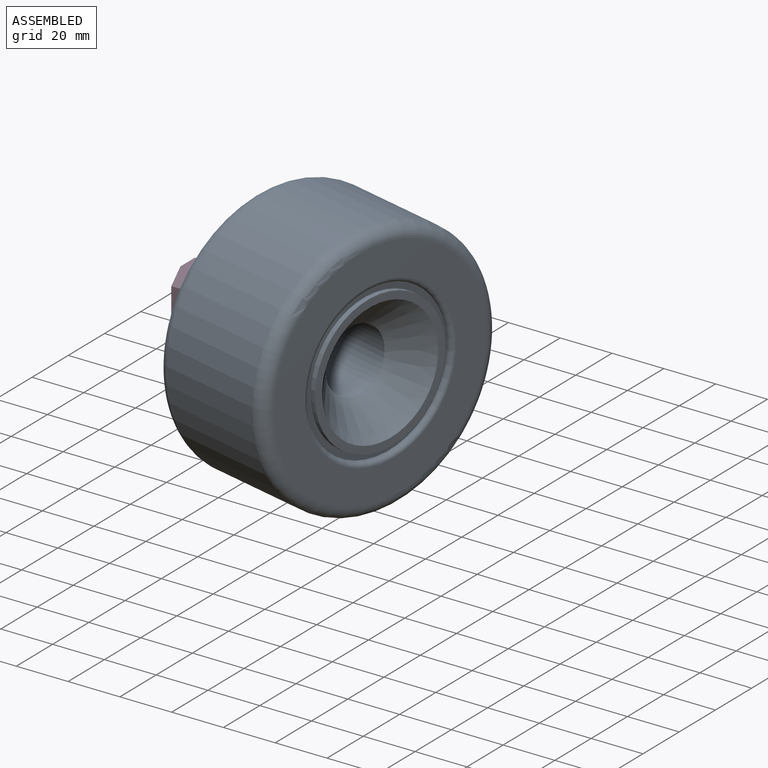
[diagram: assembled view]
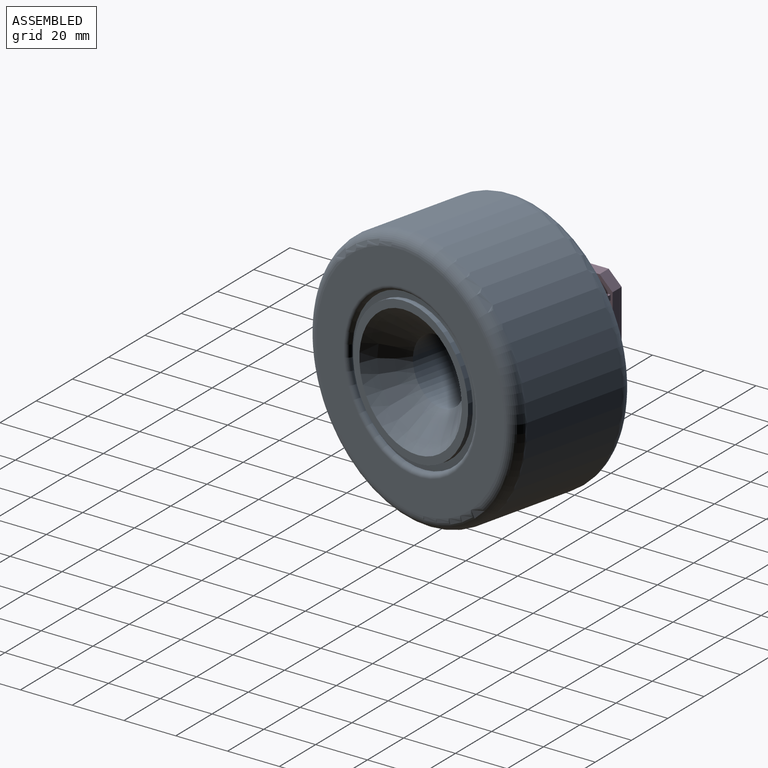
[diagram: assembled view, second angle]
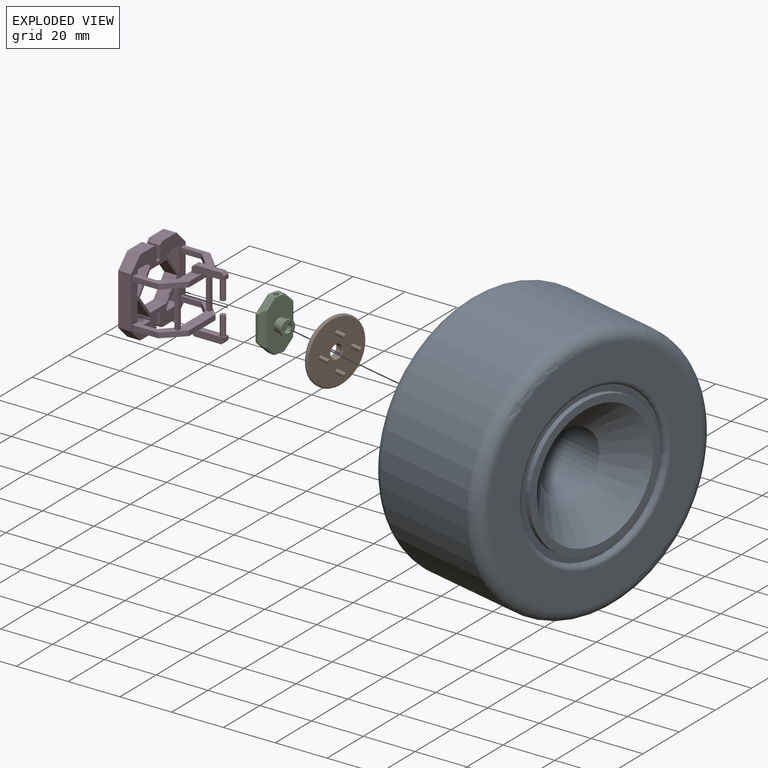
[diagram: exploded view]
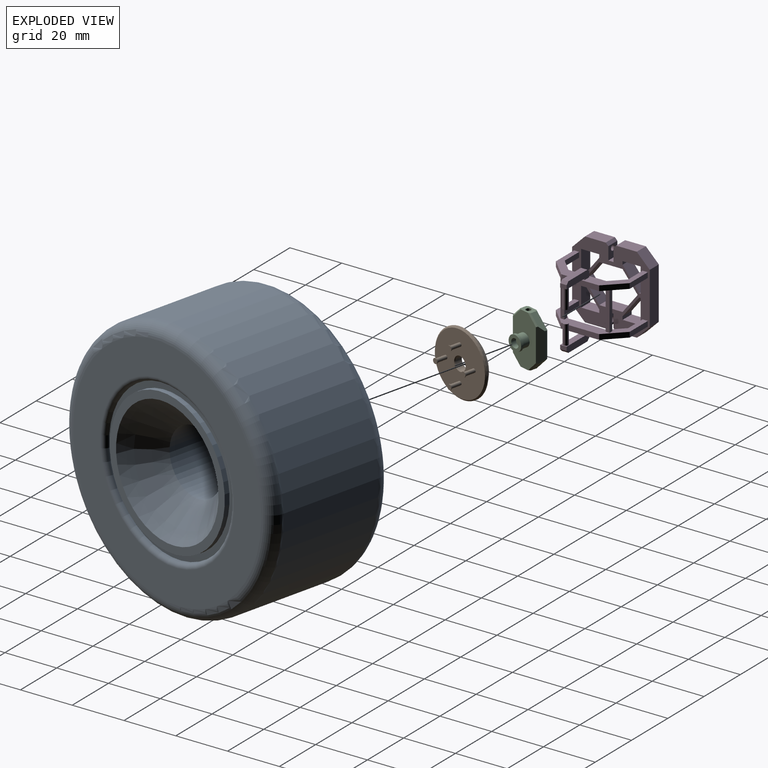
[diagram: exploded view, second angle]
ASSEMBLY  parts=4 mates=3
PART A: 19 faces, bbox 108.2x108.2x50 mm
  f0: cylinder r=50mm len=100mm, axis (0,0,-1), area 12566.4mm2, adj f3,f4
  f1: plane 90x90mm, normal (0,0,1), area 3144.7mm2, adj f4,f8
  f2: plane 90x90mm, normal (0,0,-1), area 5870.9mm2, adj f3,f11
  f3: torus R=45mm, axis (0,0,1), area 2377.7mm2, adj f0,f2
  f4: torus R=45mm, axis (0,0,1), area 2377.7mm2, adj f0,f1
  f5: cylinder r=27.5mm len=55mm, axis (0,0,1), area 345.6mm2, adj f6,f7
  f6: plane 60x60mm, normal (0,0,1), area 451.6mm2, adj f5,f8
  f7: plane 55x55mm, normal (0,0,1), area 490.1mm2, adj f5,f17
  f8: torus R=32mm, axis (0,0,1), area 606.5mm2, adj f1,f6
  f9: cylinder r=12.5mm len=29mm, axis (0,0,1), area 2277.7mm2, adj f10,f17
  f10: plane 25x25mm, normal (0,0,1), area 455.5mm2, adj f9,f13,f14,f15,f16,f18
  f11: cylinder r=12.5mm len=25mm, axis (0,0,-1), area 392.7mm2, adj f2,f12
  f12: plane 25x25mm, normal (0,0,-1), area 455.5mm2, adj f11,f13,f14,f15,f16,f18
  f13: cylinder r=0.75mm len=4mm, axis (0,0,1), area 18.8mm2, adj f10,f12
  f14: cylinder r=0.75mm len=4mm, axis (0,0,1), area 18.8mm2, adj f10,f12
  f15: cylinder r=0.75mm len=4mm, axis (0,0,1), area 18.8mm2, adj f10,f12
  f16: cylinder r=0.75mm len=4mm, axis (0,0,1), area 18.8mm2, adj f10,f12
  f17: cone r=12.5mm half-angle=45deg, axis (0,0,1), area 1972.6mm2, adj f7,f9
  f18: cylinder r=3mm len=6mm, axis (0,0,-1), area 75.4mm2, adj f10,f12
PART B: 27 faces, bbox 25x25x7.5 mm
  f0: cylinder r=12.5mm len=25mm, axis (0,0,-1), area 39.3mm2, adj f14,f15
  f1: plane 24x24mm, normal (0,0,1), area 421.6mm2, adj f4,f5,f6,f7,f14,f26
  f2: plane 21x21mm, normal (0,0,-1), area 326.7mm2, adj f3,f15
  f3: cylinder r=2.5mm len=5mm, axis (0,0,-1), area 43.2mm2, adj f2,f26
  f4: cylinder r=0.75mm len=4mm, axis (0,0,-1), area 18.8mm2, adj f1,f18
  f5: cylinder r=0.75mm len=4mm, axis (0,0,-1), area 18.8mm2, adj f1,f10
  f6: cylinder r=0.75mm len=4mm, axis (0,0,-1), area 18.8mm2, adj f1,f21
  f7: cylinder r=0.75mm len=4mm, axis (0,0,-1), area 18.8mm2, adj f1,f13
  f8: cylinder r=1mm len=2mm, axis (0,0,-1), area 1.9mm2, adj f9,f24
  f9: plane 2x2mm, normal (0,0,1), area 3.1mm2, adj f8
  f10: plane 1.6x1.6mm, normal (0,0,-1), area 0.2mm2, adj f5,f24
  f11: cylinder r=1mm len=2mm, axis (0,0,-1), area 1.9mm2, adj f12,f22
  f12: plane 2x2mm, normal (0,0,1), area 3.1mm2, adj f11
  f13: plane 1.6x1.6mm, normal (0,0,-1), area 0.2mm2, adj f7,f22
  f14: cone r=12mm half-angle=45deg, axis (0,0,-1), area 54.4mm2, adj f0,f1
  f15: cone r=12.5mm half-angle=45deg, axis (0,0,1), area 204.4mm2, adj f0,f2
  f16: cylinder r=1mm len=2mm, axis (0,0,-1), area 1.9mm2, adj f17,f23
  f17: plane 2x2mm, normal (0,0,1), area 3.1mm2, adj f16
  f18: plane 1.6x1.6mm, normal (0,0,-1), area 0.2mm2, adj f4,f23
  f19: cylinder r=1mm len=2mm, axis (0,0,-1), area 1.9mm2, adj f20,f25
  f20: plane 2x2mm, normal (0,0,1), area 3.1mm2, adj f19
  f21: plane 1.6x1.6mm, normal (0,0,-1), area 0.2mm2, adj f6,f25
  f22: cone r=1mm half-angle=45deg, axis (0,0,1), area 1.6mm2, adj f11,f13
  f23: cone r=1mm half-angle=45deg, axis (0,0,1), area 1.6mm2, adj f16,f18
  f24: cone r=1mm half-angle=45deg, axis (0,0,1), area 1.6mm2, adj f8,f10
  f25: cone r=1mm half-angle=45deg, axis (0,0,1), area 1.6mm2, adj f19,f21
  f26: cone r=2.5mm half-angle=45deg, axis (0,0,1), area 5.8mm2, adj f1,f3
PART C: 32 faces, bbox 15x7.5x20 mm
  f0: plane 10x1mm, normal (-1,0,0), area 10mm2, adj f18,f19,f21,f27
  f1: plane 20x11mm, normal (0,-1,0), area 172.9mm2, adj f4,f5,f10,f20,f21,f28,f29,f30
  f2: plane 10x1mm, normal (1,0,0), area 10mm2, adj f16,f17,f20,f23
  f3: plane 20x14mm, normal (0,1,0), area 225.8mm2, adj f4,f5,f22,f23,f24,f25,f26,f27
  f4: plane 5x3.5mm, normal (0,0,1), area 13.7mm2, adj f1,f3,f6,f16,f19,f22,f25,f30
  f5: plane 5x3.5mm, normal (0,0,-1), area 13.7mm2, adj f1,f3,f8,f17,f18,f24,f26,f28
  f6: cylinder r=1mm len=5mm, axis (0,0,1), area 31.4mm2, adj f4,f7
  f7: plane 2x2mm, normal (0,0,1), area 3.1mm2, adj f6
  f8: cylinder r=1mm len=5mm, axis (0,0,-1), area 31.4mm2, adj f5,f9
  f9: plane 2x2mm, normal (0,0,-1), area 3.1mm2, adj f8
  f10: cylinder r=2.5mm len=5mm, axis (0,1,0), area 47.1mm2, adj f1,f13
  f11: cylinder r=3mm len=6mm, axis (0,1,0), area 18.8mm2, adj f12,f13
  f12: plane 6x6mm, normal (0,-1,0), area 18.7mm2, adj f11,f14
  f13: plane 6x6mm, normal (0,1,0), area 8.6mm2, adj f10,f11
  f14: cylinder r=1.75mm len=3.5mm, axis (0,-1,0), area 22mm2, adj f12,f15
  f15: plane 3.5x3.5mm, normal (0,-1,0), area 9.6mm2, adj f14
  f16: plane 5x5mm, normal (0.71,0,0.71), area 16.1mm2, adj f2,f4,f20,f22,f30
  f17: plane 5x5mm, normal (0.71,0,-0.71), area 16.1mm2, adj f2,f5,f20,f24,f29
  f18: plane 5x5mm, normal (-0.71,0,-0.71), area 16.1mm2, adj f0,f5,f21,f26,f28
  f19: plane 5x5mm, normal (-0.71,0,0.71), area 16.1mm2, adj f0,f4,f21,f25,f31
  f20: plane 13x2mm, normal (0.71,-0.71,0), area 33.4mm2, adj f1,f2,f16,f17,f29,f30
  f21: plane 13x2mm, normal (-0.71,-0.71,0), area 33.4mm2, adj f0,f1,f18,f19,f28,f31
  f22: plane 5.71x5.21mm, normal (0.5,0.71,0.5), area 5.1mm2, adj f3,f4,f16,f23
  f23: plane 10x0.5mm, normal (0.71,0.71,0), area 6.9mm2, adj f2,f3,f22,f24
  f24: plane 5.71x5.21mm, normal (0.5,0.71,-0.5), area 5.1mm2, adj f3,f5,f17,f23
  f25: plane 5.71x5.21mm, normal (-0.5,0.71,0.5), area 5.1mm2, adj f3,f4,f19,f27
  f26: plane 5.71x5.21mm, normal (-0.5,0.71,-0.5), area 5.1mm2, adj f3,f5,f18,f27
  f27: plane 10x0.5mm, normal (-0.71,0.71,0), area 6.9mm2, adj f0,f3,f25,f26
  f28: plane 4.21x3.71mm, normal (-0.5,-0.71,-0.5), area 3.6mm2, adj f1,f5,f18,f21
  f29: plane 4.21x3.71mm, normal (0.5,-0.71,-0.5), area 3.6mm2, adj f1,f5,f17,f20
  f30: plane 4.21x3.71mm, normal (0.5,-0.71,0.5), area 3.6mm2, adj f1,f4,f16,f20
  f31: plane 4.21x3.71mm, normal (-0.5,-0.71,0.5), area 3.6mm2, adj f1,f4,f19,f21
PART D: 110 faces, bbox 31.2x30x30 mm
  f0: plane 30x30mm, normal (1,0,0), area 426mm2, adj f2,f3,f4,f5,f6,f7,f8,f9
  f1: plane 30x30mm, normal (-1,0,0), area 442mm2, adj f2,f3,f4,f5,f6,f7,f8,f9
  f2: plane 8x5mm, normal (0,0,1), area 40mm2, adj f0,f1,f22,f26
  f3: plane 8x5mm, normal (0,0,-1), area 40mm2, adj f0,f1,f23,f29
  f4: plane 20x5mm, normal (0,-1,0), area 100mm2, adj f0,f1,f24,f25
  f5: plane 20x5mm, normal (0,1,0), area 100mm2, adj f0,f1,f22,f23
  f6: plane 8x5mm, normal (0,0,1), area 40mm2, adj f0,f1,f25,f27
  f7: plane 8x5mm, normal (0,0,-1), area 40mm2, adj f0,f1,f24,f28
  f8: plane 5x5mm, normal (0,-1,0), area 21.9mm2, adj f0,f1,f9,f18,f29
  f9: plane 5x2mm, normal (0,0,-1), area 10mm2, adj f0,f1,f8,f10
  f10: plane 5x5mm, normal (0,1,0), area 21.9mm2, adj f0,f1,f9,f20,f28
  f11: plane 5x5mm, normal (0,-1,0), area 21.9mm2, adj f0,f1,f13,f16,f26
  f12: plane 5x5mm, normal (0,1,0), area 21.9mm2, adj f0,f1,f13,f14,f27
  f13: plane 5x2mm, normal (0,0,1), area 10mm2, adj f0,f1,f11,f12
  f14: cylinder r=1mm len=5mm, axis (0,1,0), area 31.4mm2, adj f12,f15
  f15: plane 2x2mm, normal (0,1,0), area 3.1mm2, adj f14
  f16: cylinder r=1mm len=5mm, axis (0,-1,0), area 31.4mm2, adj f11,f17
  f17: plane 2x2mm, normal (0,-1,0), area 3.1mm2, adj f16
  f18: cylinder r=1mm len=5mm, axis (0,-1,0), area 31.4mm2, adj f8,f19
  f19: plane 2x2mm, normal (0,-1,0), area 3.1mm2, adj f18
  f20: cylinder r=1mm len=5mm, axis (0,1,0), area 31.4mm2, adj f10,f21
  f21: plane 2x2mm, normal (0,1,0), area 3.1mm2, adj f20
  f22: plane 5x5mm, normal (0,0.71,0.71), area 35.4mm2, adj f0,f1,f2,f5
  f23: plane 5x5mm, normal (0,0.71,-0.71), area 35.4mm2, adj f0,f1,f3,f5
  f24: plane 5x5mm, normal (0,-0.71,-0.71), area 35.4mm2, adj f0,f1,f4,f7
  f25: plane 5x5mm, normal (0,-0.71,0.71), area 35.4mm2, adj f0,f1,f4,f6
  f26: plane 5x1mm, normal (0,-0.71,0.71), area 7.1mm2, adj f0,f1,f2,f11
  f27: plane 5x1mm, normal (0,0.71,0.71), area 7.1mm2, adj f0,f1,f6,f12
  f28: plane 5x1mm, normal (0,0.71,-0.71), area 7.1mm2, adj f0,f1,f7,f10
  f29: plane 5x1mm, normal (0,-0.71,-0.71), area 7.1mm2, adj f0,f1,f3,f8
  f30: plane 5x1.25mm, normal (0,-1,0), area 6.3mm2, adj f0,f1,f31,f34
  f31: plane 8.25x6.42mm, normal (0,-0.79,-0.61), area 52.3mm2, adj f0,f1,f30,f32
  f32: plane 5x0.58mm, normal (0,0,-1), area 2.9mm2, adj f0,f1,f31,f33
  f33: plane 9.5x5mm, normal (0,1,0), area 47.5mm2, adj f0,f1,f32,f34
  f34: plane 7x5mm, normal (0,0,1), area 35mm2, adj f0,f1,f30,f33
  f35: plane 5x1.25mm, normal (0,1,0), area 6.3mm2, adj f0,f1,f36,f39
  f36: plane 7x5mm, normal (0,0,1), area 35mm2, adj f0,f1,f35,f37
  f37: plane 9.5x5mm, normal (0,-1,0), area 47.5mm2, adj f0,f1,f36,f38
  f38: plane 5x0.58mm, normal (0,0,-1), area 2.9mm2, adj f0,f1,f37,f39
  f39: plane 8.25x6.42mm, normal (0,0.79,-0.61), area 52.3mm2, adj f0,f1,f35,f38
  f40: plane 8.25x6.42mm, normal (0,0.79,0.61), area 52.3mm2, adj f0,f1,f41,f44
  f41: plane 5x0.58mm, normal (0,0,1), area 2.9mm2, adj f0,f1,f40,f42
  f42: plane 9.5x5mm, normal (0,-1,0), area 47.5mm2, adj f0,f1,f41,f43
  f43: plane 7x5mm, normal (0,0,-1), area 35mm2, adj f0,f1,f42,f44
  f44: plane 5x1.25mm, normal (0,1,0), area 6.3mm2, adj f0,f1,f40,f43
  f45: plane 9x5mm, normal (0,0,-1), area 45mm2, adj f0,f1,f46,f50
  f46: plane 7.5x5.76mm, normal (0,0.79,-0.61), area 47.3mm2, adj f0,f1,f45,f47
  f47: plane 7.5x5.76mm, normal (0,0.79,0.61), area 47.3mm2, adj f0,f1,f46,f48
  f48: plane 9x5mm, normal (0,0,1), area 45mm2, adj f0,f1,f47,f49
  f49: plane 7.5x5.83mm, normal (0,-0.79,0.61), area 47.5mm2, adj f0,f1,f48,f50
  f50: plane 7.5x5.83mm, normal (0,-0.79,-0.61), area 47.5mm2, adj f0,f1,f45,f49
  f51: plane 5x0.58mm, normal (0,0,1), area 2.9mm2, adj f0,f1,f52,f55
  f52: plane 8.25x6.42mm, normal (0,-0.79,0.61), area 52.3mm2, adj f0,f1,f51,f53
  f53: plane 5x1.25mm, normal (0,-1,0), area 6.3mm2, adj f0,f1,f52,f54
  f54: plane 7x5mm, normal (0,0,-1), area 35mm2, adj f0,f1,f53,f55
  f55: plane 9.5x5mm, normal (0,1,0), area 47.5mm2, adj f0,f1,f51,f54
  f56: plane 28.5x16.95mm, normal (0,0,1), area 137.5mm2, adj f0,f57,f59,f60,f61,f68,f69,f72
  f57: plane 10x2mm, normal (0,-1,0), area 20mm2, adj f0,f56,f58,f68
  f58: plane 28.5x16.95mm, normal (0,0,-1), area 135.8mm2, adj f0,f57,f59,f60,f61,f68,f69,f72
  f59: plane 8x2mm, normal (0,1,0), area 16mm2, adj f0,f56,f58,f69
  f60: plane 10x2mm, normal (0,1,0), area 20mm2, adj f0,f56,f58,f73
  f61: plane 8x2mm, normal (0,-1,0), area 16mm2, adj f0,f56,f58,f72
  f62: plane 28.5x16.95mm, normal (0,0,-1), area 137.5mm2, adj f0,f63,f65,f66,f67,f70,f71,f74
  f63: plane 8x2mm, normal (0,1,0), area 16mm2, adj f0,f62,f64,f70
  f64: plane 28.5x16.95mm, normal (0,0,1), area 135.7mm2, adj f0,f63,f65,f66,f67,f70,f71,f74
  f65: plane 10x2mm, normal (0,-1,0), area 20mm2, adj f0,f62,f64,f71
  f66: plane 10x2mm, normal (0,1,0), area 20mm2, adj f0,f62,f64,f74
  f67: plane 8x2mm, normal (0,-1,0), area 16mm2, adj f0,f62,f64,f75
  f68: plane 6.95x6.95mm, normal (0.71,-0.71,0), area 19.7mm2, adj f56,f57,f58,f76
  f69: plane 4.95x4.95mm, normal (-0.71,0.71,0), area 14mm2, adj f56,f58,f59,f77
  f70: plane 4.95x4.95mm, normal (-0.71,0.71,0), area 14mm2, adj f62,f63,f64,f79
  f71: plane 6.95x6.95mm, normal (0.71,-0.71,0), area 19.7mm2, adj f62,f64,f65,f78
  f72: plane 4.95x4.95mm, normal (-0.71,-0.71,0), area 14mm2, adj f56,f58,f61,f77
  f73: plane 6.95x6.95mm, normal (0.71,0.71,0), area 19.7mm2, adj f56,f58,f60,f76
  f74: plane 6.95x6.95mm, normal (0.71,0.71,0), area 19.7mm2, adj f62,f64,f66,f78
  f75: plane 4.95x4.95mm, normal (-0.71,-0.71,0), area 14mm2, adj f62,f64,f67,f79
  f76: plane 14.6x2mm, normal (1,0,0), area 29.2mm2, adj f56,f58,f68,f73
  f77: plane 14.6x2mm, normal (-1,0,0), area 29.2mm2, adj f56,f58,f69,f72
  f78: plane 14.6x2mm, normal (1,0,0), area 29.2mm2, adj f62,f64,f71,f74
  f79: plane 14.6x2mm, normal (-1,0,0), area 29.2mm2, adj f62,f64,f70,f75
  f80: plane 15x1.5mm, normal (1,0,0), area 22.5mm2, adj f56,f62,f81,f83
  f81: plane 15x1.5mm, normal (0,-1,0), area 22.5mm2, adj f56,f62,f80,f82
  f82: plane 15x1.5mm, normal (-1,0,0), area 22.5mm2, adj f56,f62,f81,f83
  f83: plane 15x1.5mm, normal (0,1,0), area 22.5mm2, adj f56,f62,f80,f82
  f84: plane 15x1.5mm, normal (0,1,0), area 22.5mm2, adj f56,f62,f85,f87
  f85: plane 15x1.5mm, normal (1,0,0), area 22.5mm2, adj f56,f62,f84,f86
  f86: plane 15x1.5mm, normal (0,-1,0), area 22.5mm2, adj f56,f62,f85,f87
  f87: plane 15x1.5mm, normal (-1,0,0), area 22.5mm2, adj f56,f62,f84,f86
  f88: plane 12.5x3mm, normal (0,-1,0), area 31.5mm2, adj f64,f89,f91,f92,f100,f101,f103,f105
  f89: plane 2.5x0.5mm, normal (1,0,0), area 1.3mm2, adj f64,f88,f90,f100
  f90: plane 12.5x3mm, normal (0,1,0), area 31.5mm2, adj f64,f89,f91,f92,f100,f101,f103,f105
  f91: plane 2.5x2mm, normal (-1,0,0), area 5mm2, adj f64,f88,f90,f103
  f92: plane 10.5x2.5mm, normal (0,0,1), area 26.3mm2, adj f88,f90,f103,f105
  f93: plane 12.5x3mm, normal (0,1,0), area 31.5mm2, adj f58,f94,f96,f97,f98,f99,f102,f104
  f94: plane 2.5x0.5mm, normal (1,0,0), area 1.3mm2, adj f58,f93,f95,f98
  f95: plane 12.5x3mm, normal (0,-1,0), area 31.5mm2, adj f58,f94,f96,f97,f98,f99,f102,f104
  f96: plane 2.5x2mm, normal (-1,0,0), area 5mm2, adj f58,f93,f95,f102
  f97: plane 10.5x2.5mm, normal (0,0,-1), area 26.3mm2, adj f93,f95,f102,f104
  f98: plane 10x2.5mm, normal (0,0,1), area 21.9mm2, adj f93,f94,f95,f99,f108
  f99: plane 2.5x1.5mm, normal (1,0,0), area 3.8mm2, adj f93,f95,f98,f104
  f100: plane 10x2.5mm, normal (0,0,-1), area 21.9mm2, adj f88,f89,f90,f101,f106
  f101: plane 2.5x1.5mm, normal (1,0,0), area 3.7mm2, adj f88,f90,f100,f105
  f102: plane 2.5x1mm, normal (-0.71,0,-0.71), area 3.5mm2, adj f93,f95,f96,f97
  f103: plane 2.5x1mm, normal (-0.71,0,0.71), area 3.5mm2, adj f88,f90,f91,f92
  f104: plane 2.5x1mm, normal (0.71,0,-0.71), area 3.5mm2, adj f93,f95,f97,f99
  f105: plane 2.5x1mm, normal (0.71,0,0.71), area 3.5mm2, adj f88,f90,f92,f101
  f106: cylinder r=1mm len=7.5mm, axis (0,0,1), area 47.1mm2, adj f100,f107
  f107: plane 2x2mm, normal (0,0,-1), area 3.1mm2, adj f106
  f108: cylinder r=1mm len=7.5mm, axis (0,0,-1), area 47.1mm2, adj f98,f109
  f109: plane 2x2mm, normal (0,0,1), area 3.1mm2, adj f108
PLACE A rot(axis=(0.12,0.99,-0.12),90.8deg) t=(4.29,5.42,16.05)mm
PLACE B rot(axis=(0.12,0.99,-0.12),90.8deg) t=(6.47,4.9,16.05)mm
PLACE C rot(axis=(0,0,1),76.4deg) t=(4.47,-2.34,6.05)mm
PLACE D t=(-20.42,-9.63,1.55)mm fixed
MATE fastened A.f11 <-> C.f10  axis (-0.97,0.23,0) through (9.15,4.25,16.05)mm
MATE revolute B.f3 <-> C.f10  axis (-0.97,0.23,0) through (9.15,4.25,16.05)mm
MATE revolute C.f6 <-> D.f106  axis (0,0,1) through (4.53,5.37,26.05)mm
